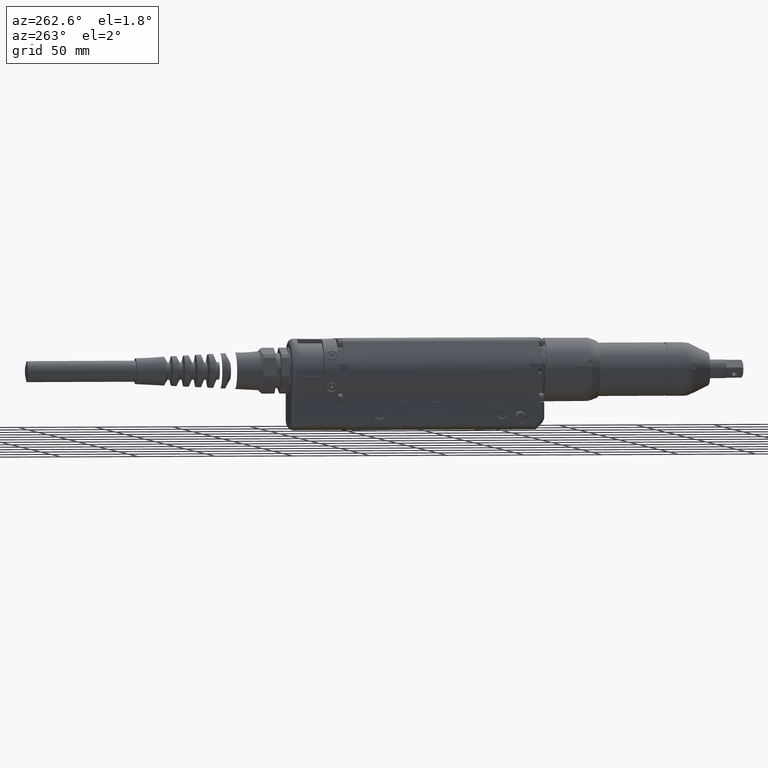
[diagram: clean part render]
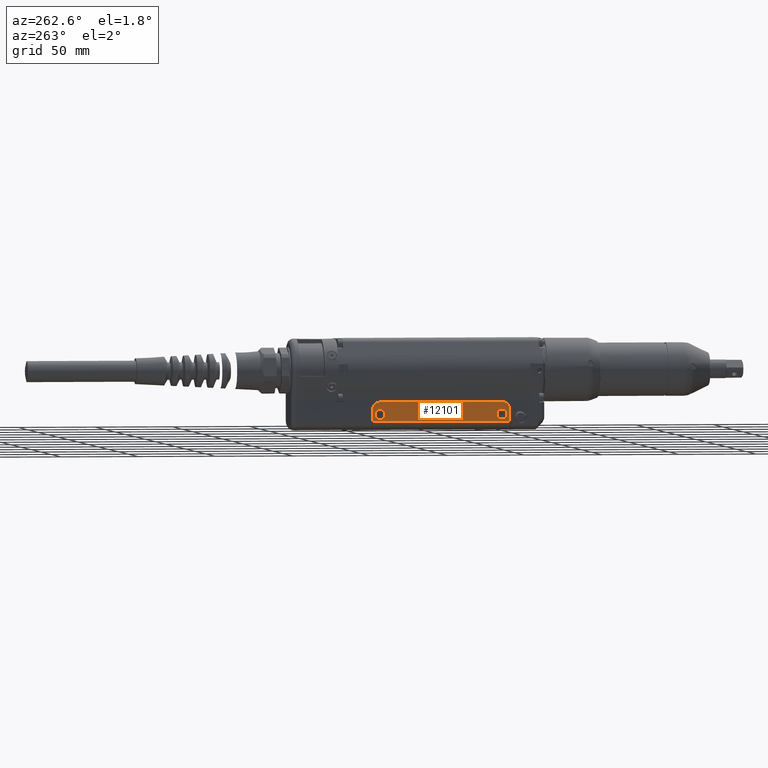
[diagram: same view with one face highlighted and labeled with its STEP entity id]
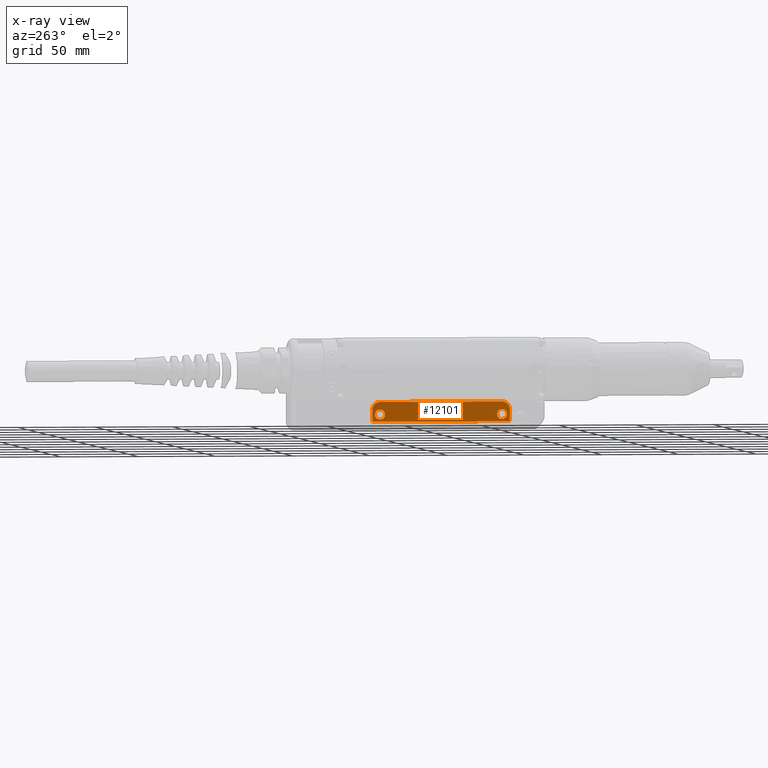
[diagram: x-ray of the same camera — body ghosted, the highlighted face saturated]
A machine part, auxiliary view. The second image highlights one B-rep face of the part: STEP entity #12101.
The next image is the same camera in x-ray: the body ghosted, the highlighted face saturated — about 0% of this face is hidden behind the body in this view.
In plain terms, the highlighted planar face has unit normal (-1, 0, 0).
Its self-contained STEP definition (entity closure, byte-faithful):
#243=FACE_BOUND('',#2426,.T.);
#244=FACE_BOUND('',#2427,.T.);
#417=PLANE('',#13108);
#1695=FACE_OUTER_BOUND('',#2425,.T.);
#2425=EDGE_LOOP('',(#9298,#9299,#9300,#9301,#9302,#9303));
#2426=EDGE_LOOP('',(#9304));
#2427=EDGE_LOOP('',(#9305));
#3318=LINE('',#19197,#4207);
#3325=LINE('',#19229,#4214);
#3330=LINE('',#19243,#4219);
#3342=LINE('',#19282,#4231);
#4207=VECTOR('',#15122,10.);
#4214=VECTOR('',#15151,10.);
#4219=VECTOR('',#15166,10.);
#4231=VECTOR('',#15216,10.);
#5026=CIRCLE('',#13103,5.);
#5027=CIRCLE('',#13109,5.);
#5028=CIRCLE('',#13110,3.25);
#5029=CIRCLE('',#13111,3.25);
#5810=VERTEX_POINT('',#19194);
#5811=VERTEX_POINT('',#19196);
#5824=VERTEX_POINT('',#19226);
#5825=VERTEX_POINT('',#19228);
#5836=VERTEX_POINT('',#19271);
#5837=VERTEX_POINT('',#19280);
#5838=VERTEX_POINT('',#19285);
#5839=VERTEX_POINT('',#19287);
#7101=EDGE_CURVE('',#5810,#5811,#3318,.T.);
#7118=EDGE_CURVE('',#5824,#5825,#3325,.T.);
#7127=EDGE_CURVE('',#5824,#5811,#3330,.T.);
#7141=EDGE_CURVE('',#5825,#5836,#5026,.T.);
#7146=EDGE_CURVE('',#5836,#5837,#3342,.T.);
#7147=EDGE_CURVE('',#5837,#5810,#5027,.T.);
#7148=EDGE_CURVE('',#5838,#5838,#5028,.T.);
#7149=EDGE_CURVE('',#5839,#5839,#5029,.T.);
#9298=ORIENTED_EDGE('',*,*,#7147,.F.);
#9299=ORIENTED_EDGE('',*,*,#7146,.F.);
#9300=ORIENTED_EDGE('',*,*,#7141,.F.);
#9301=ORIENTED_EDGE('',*,*,#7118,.F.);
#9302=ORIENTED_EDGE('',*,*,#7127,.T.);
#9303=ORIENTED_EDGE('',*,*,#7101,.F.);
#9304=ORIENTED_EDGE('',*,*,#7148,.T.);
#9305=ORIENTED_EDGE('',*,*,#7149,.T.);
#12101=ADVANCED_FACE('',(#1695,#243,#244),#417,.T.);
#13103=AXIS2_PLACEMENT_3D('',#19272,#15202,#15203);
#13108=AXIS2_PLACEMENT_3D('',#19283,#15217,#15218);
#13109=AXIS2_PLACEMENT_3D('',#19284,#15219,#15220);
#13110=AXIS2_PLACEMENT_3D('',#19286,#15221,#15222);
#13111=AXIS2_PLACEMENT_3D('',#19288,#15223,#15224);
#15122=DIRECTION('',(-6.21031943014785E-13,-3.41680368016911E-16,-1.));
#15151=DIRECTION('',(6.21031943014785E-13,3.41680368016911E-16,1.));
#15166=DIRECTION('',(-1.14267019239552E-13,-1.,3.41680368087875E-16));
#15202=DIRECTION('center_axis',(1.,-1.14267019239553E-13,-6.21031943014785E-13));
#15203=DIRECTION('ref_axis',(5.19620863917736E-13,0.707106781186548,0.707106781186547));
#15216=DIRECTION('',(-1.14267019239552E-13,-1.,3.41680368087875E-16));
#15217=DIRECTION('center_axis',(-1.,1.14267019239553E-13,6.21031943014785E-13));
#15218=DIRECTION('ref_axis',(-6.21031943014785E-13,-3.41680368016911E-16,
-1.));
#15219=DIRECTION('center_axis',(1.,-1.14267019239553E-13,-6.21031943014785E-13));
#15220=DIRECTION('ref_axis',(3.58022895577214E-13,-0.707106781186547,0.707106781186548));
#15221=DIRECTION('center_axis',(1.,-1.14267019239553E-13,-6.21031943014785E-13));
#15222=DIRECTION('ref_axis',(-1.14267019239552E-13,-1.,3.41680368087875E-16));
#15223=DIRECTION('center_axis',(1.,-1.14267019239553E-13,-6.21031943014785E-13));
#15224=DIRECTION('ref_axis',(-1.14267019239552E-13,-1.,3.41680368087875E-16));
#19194=CARTESIAN_POINT('',(-14.9999999999958,22.5000000000006,-24.9999999999902));
#19196=CARTESIAN_POINT('',(-15.0000000000006,22.5000000000006,-32.6993887405656));
#19197=CARTESIAN_POINT('',(-15.0000000000006,22.5000000000006,-32.6993887405656));
#19226=CARTESIAN_POINT('',(-14.9999999999904,111.500000000001,-32.6993887405656));
#19228=CARTESIAN_POINT('',(-14.9999999999856,111.500000000001,-24.9999999999902));
#19229=CARTESIAN_POINT('',(-14.9999999999904,111.500000000001,-32.6993887405656));
#19243=CARTESIAN_POINT('',(-14.9999999999904,111.500000000001,-32.6993887405656));
#19271=CARTESIAN_POINT('',(-14.9999999999831,106.500000000001,-19.9999999999902));
#19272=CARTESIAN_POINT('Origin',(-14.9999999999862,106.500000000001,-24.9999999999902));
#19280=CARTESIAN_POINT('',(-14.9999999999921,27.5000000000006,-19.9999999999902));
#19282=CARTESIAN_POINT('',(-14.9999999999825,111.500000000001,-19.9999999999902));
#19283=CARTESIAN_POINT('Origin',(-14.9999999999825,111.500000000001,-19.9999999999902));
#19284=CARTESIAN_POINT('Origin',(-14.9999999999952,27.5000000000006,-24.9999999999902));
#19285=CARTESIAN_POINT('',(-14.9999999999877,109.750000000001,-27.9999999999902));
#19286=CARTESIAN_POINT('Origin',(-14.9999999999881,106.500000000001,-27.9999999999902));
#19287=CARTESIAN_POINT('',(-14.9999999999967,30.7500000000007,-27.9999999999902));
#19288=CARTESIAN_POINT('Origin',(-14.9999999999971,27.5000000000006,-27.9999999999902));